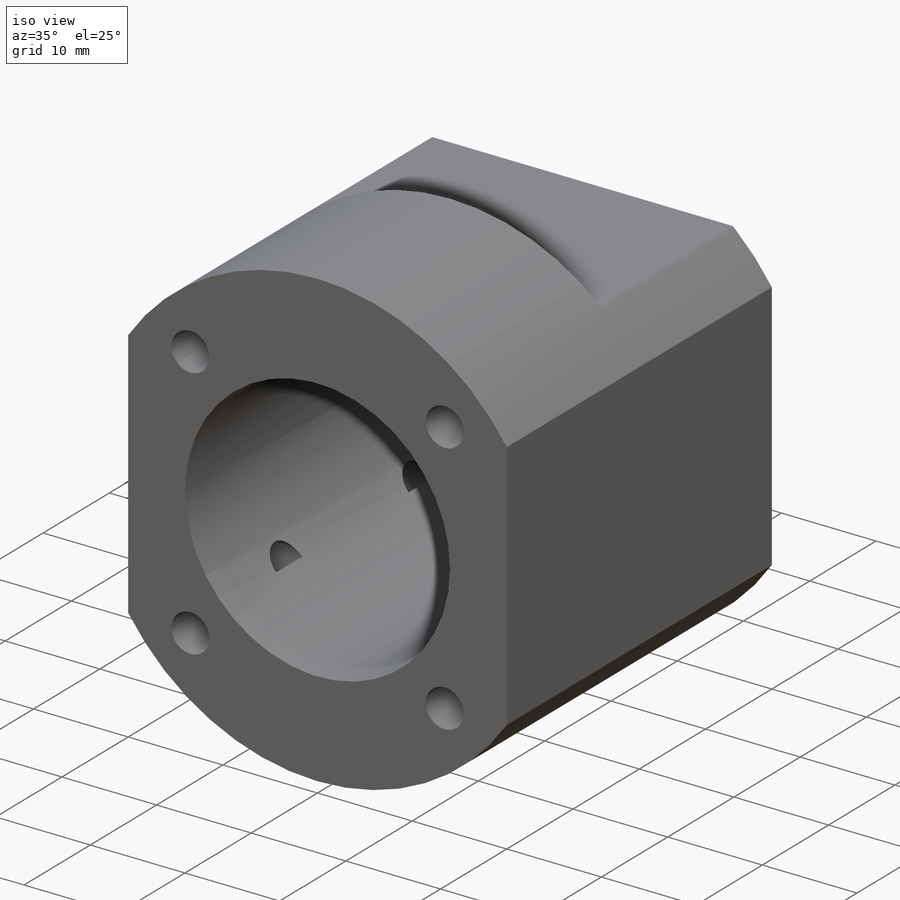
[diagram: iso view]
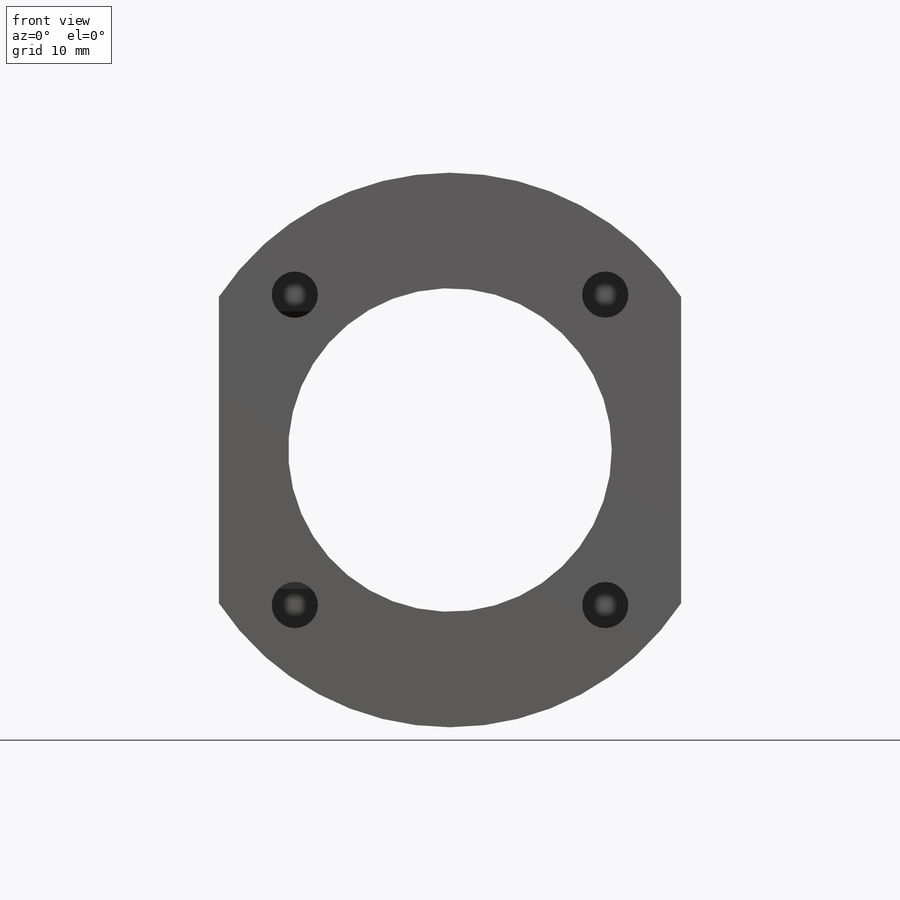
[diagram: front view]
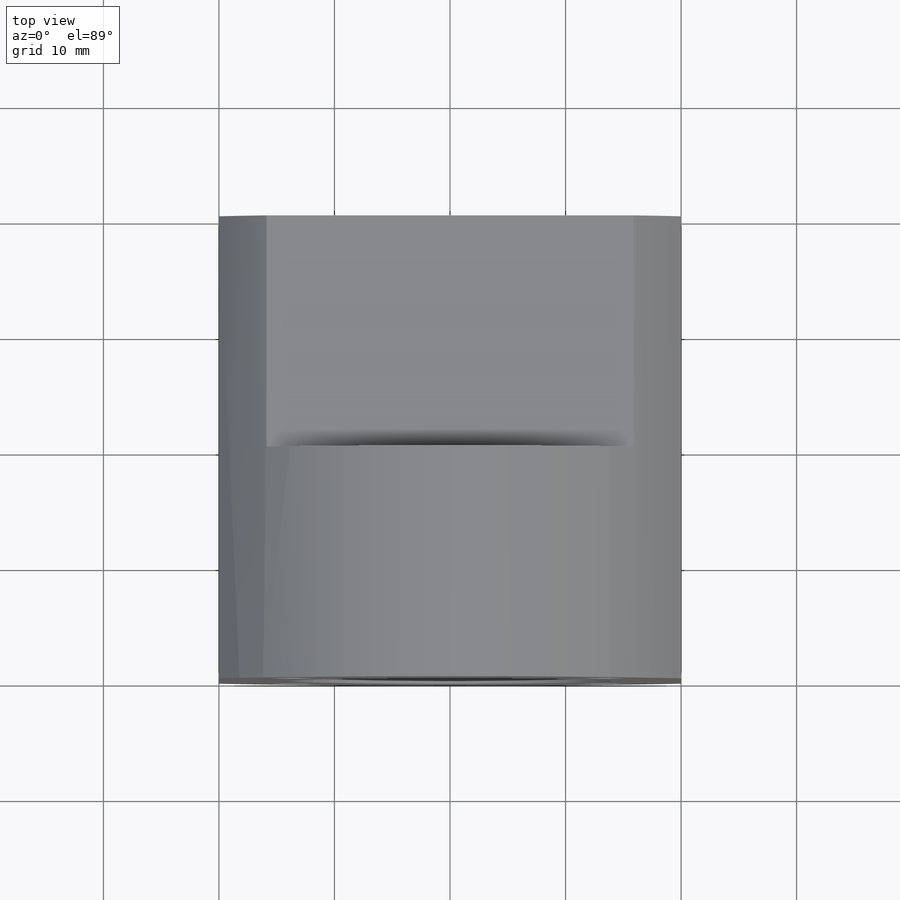
[diagram: top view]
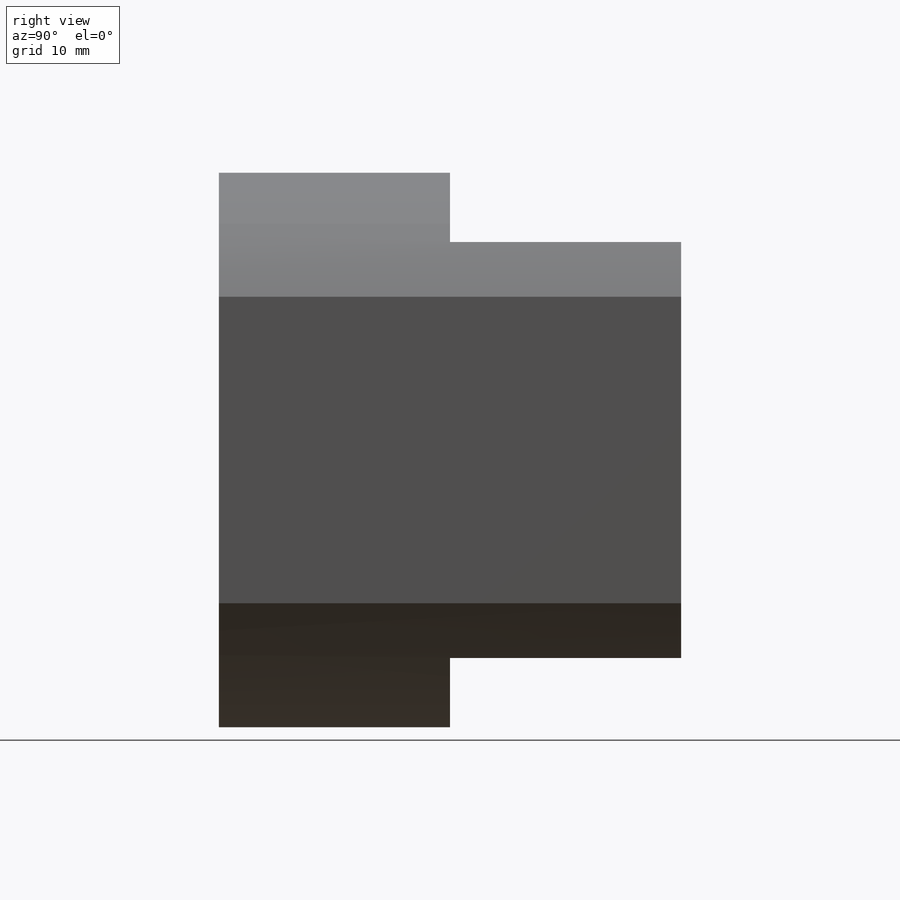
[diagram: right view]
SOLIDWORKS PART (.sldprt)
format: sldprt  version: not decoded by parser v0  size: 223,744 bytes
history: native  units: mm
features: sketch x4, plane x3, cut_extrude x3, material x1, extrude x1 (+9 scaffold rows collapsed)
feature tree (21):
  scaffold x9  (default folders/planes/origin — collapsed)
  material  "Materiale <non specificato>"
  plane  "Piano frontale"
  plane  "Piano superiore"
  plane  "Piano destro"
  sketch  "Schizzo1"  dims[c1.D1=48.0mm c1.D3=28.0mm c1.D5=38.0mm c1.D6=5.0mm c1.D2=40.0mm c1.D4=~48.384063mm c2.D4=45.0deg]
  extrude  "Estrusione-Estrusione1"  Depth=40mm
  sketch  "Schizzo4"  dims[c1.D3=4.0mm c1.D1=10.0mm c1.D2=~10.886952mm c2.D2=90.0deg c3.D2=10.0mm]
  cut_extrude  "Taglio-Estrusione1"  Depth=10mm
  sketch  "Schizzo5"  dims[c1.D2=38.0mm c1.D3=4.0mm c1.D1=~33.646533mm c2.D1=45.0deg]
  cut_extrude  "Taglio-Estrusione2"  Depth=10mm
  sketch  "Schizzo6"  dims[D1=18.0mm]
  cut_extrude  "Taglio-Estrusione3"  Depth=20mm
decode coverage: 8 of 8 modeling features carry decoded parameters
note: ~ marks probable driven/reference dimensions
note: suppression state not decoded; provenance and decode notes live in map.json
